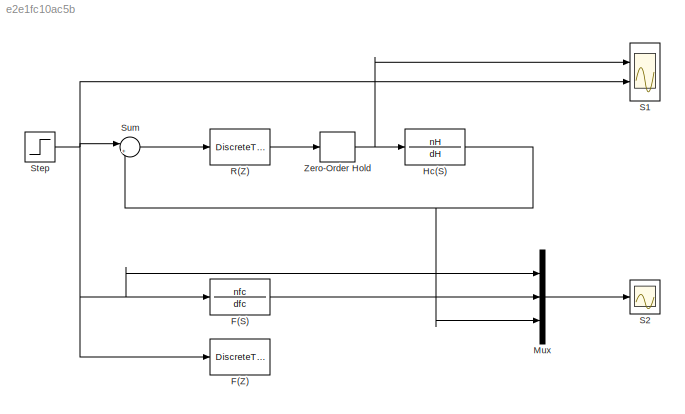
MODEL slx_e2e1fc10ac5b
KIND model
CONFIG AbsTol = auto
CONFIG EnableMultiTasking = off
CONFIG FixedStep = 0.0001
CONFIG MaxStep = auto
CONFIG MinStep = auto
CONFIG RelTol = 1e-3
CONFIG SampleTimeConstraint = Unconstrained
CONFIG Solver = FixedStepAuto
CONFIG SolverName = FixedStepAuto
CONFIG StartTime = 0.0
CONFIG StopTime = 10.0
BLOCK [TransferFcn] F(S)
  Denominator = dfc
  Numerator = nfc
BLOCK [DiscreteTransferFcn] F(Z)
  Denominator = df
  InputPortMap = u0
  Numerator = nf
  Ports = [1, 1]
  SampleTime = h
BLOCK [TransferFcn] Hc(S)
  Denominator = dH
  Numerator = nH
BLOCK [Mux] Mux
  DisplayOption = bar
  Inputs = 3
  Ports = [3, 1]
BLOCK [DiscreteTransferFcn] R(Z)
  Denominator = dzd
  InputPortMap = u0
  Numerator = nzd
  Ports = [1, 1]
  SampleTime = h
BLOCK [Scope] S1
  Floating = off
  NumInputPorts = 2
  Ports = [2]
  ScopeSpecificationString = Simulink.scopes.TimeScopeBlockCfg('CurrentConfiguration', extmgr.ConfigurationSet(extmgr.Configuration('Core','General UI',true),extmgr.Configuration('Core','Source UI',true),extmgr.Configuration('Sources','WiredSimulink',true,'DataLoggingSaveFormat','StructureWithTime','DataLoggingDecimation','5','DataLogging',true,'DataLoggingVariableName','S1','SampleTime','1e-3'),extmgr.Configuration('Visuals'...<+1598ch>
BLOCK [Scope] S2
  Floating = off
  NumInputPorts = 1
  Ports = [1]
  ScopeSpecificationString = Simulink.scopes.TimeScopeBlockCfg('CurrentConfiguration', extmgr.ConfigurationSet(extmgr.Configuration('Core','General UI',true),extmgr.Configuration('Core','Source UI',true),extmgr.Configuration('Sources','WiredSimulink',true,'DataLoggingVariableName','S2','DataLogging',true,'DataLoggingSaveFormat','StructureWithTime','SampleTime','1e-3'),extmgr.Configuration('Visuals','Time Domain',true,'Seriali...<+1644ch>
BLOCK [Step] Step
  Time = 0.5
BLOCK [Sum] Sum
  IconShape = round
  InputSameDT = off
  Inputs = |+-
  OutDataTypeStr = Inherit: Inherit via internal rule
  Ports = [2, 1]
  SaturateOnIntegerOverflow = off
BLOCK [ZeroOrderHold] Zero-Order Hold
  SampleTime = -1
LINE F(S):1 -> Mux:2
NET Hc(S):1 -> Mux:3, Sum:2
LINE Mux:1 -> S2:1
LINE R(Z):1 -> Zero-Order Hold:1
NET Step:1 -> F(S):1, F(Z):1, Mux:1, S1:2, Sum:1
LINE Sum:1 -> R(Z):1
NET Zero-Order Hold:1 -> Hc(S):1, S1:1
note: NET lines group one-source signal fan-out (src -> all destinations, sorted); 1:1 wires keep LINE
